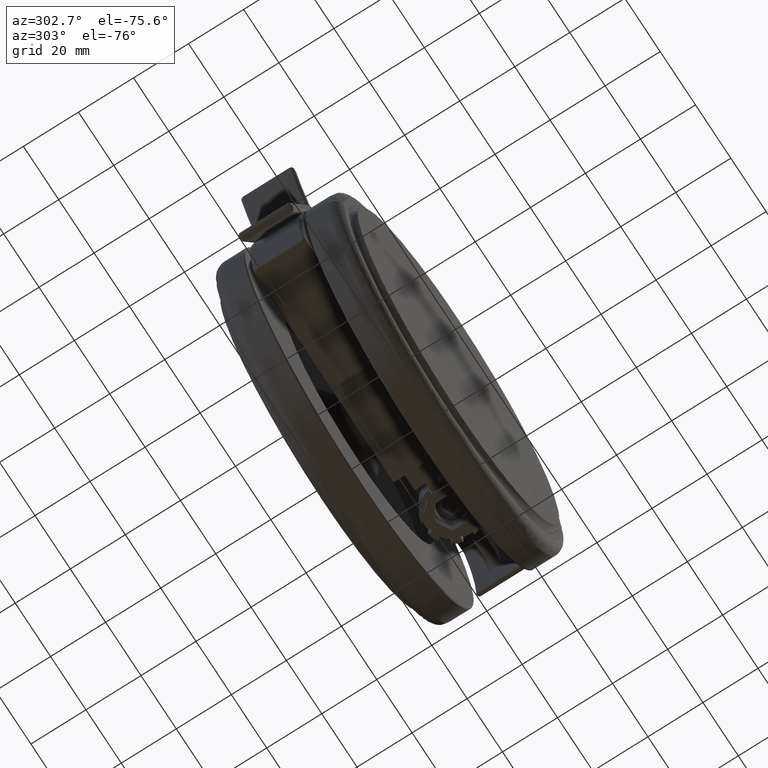
[diagram: clean part render]
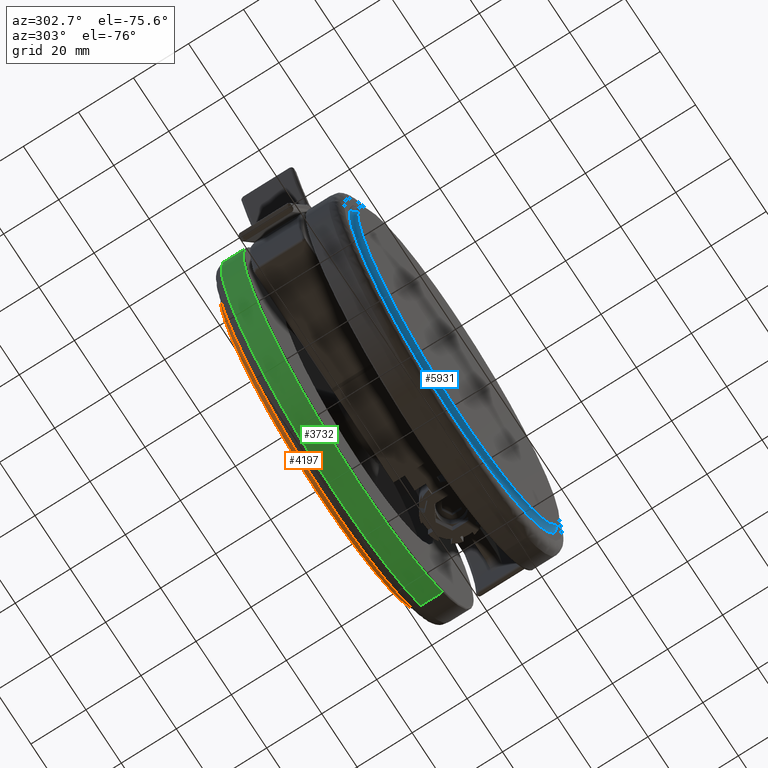
[diagram: same view with three faces highlighted in distinct colors, each labeled with its STEP entity id]
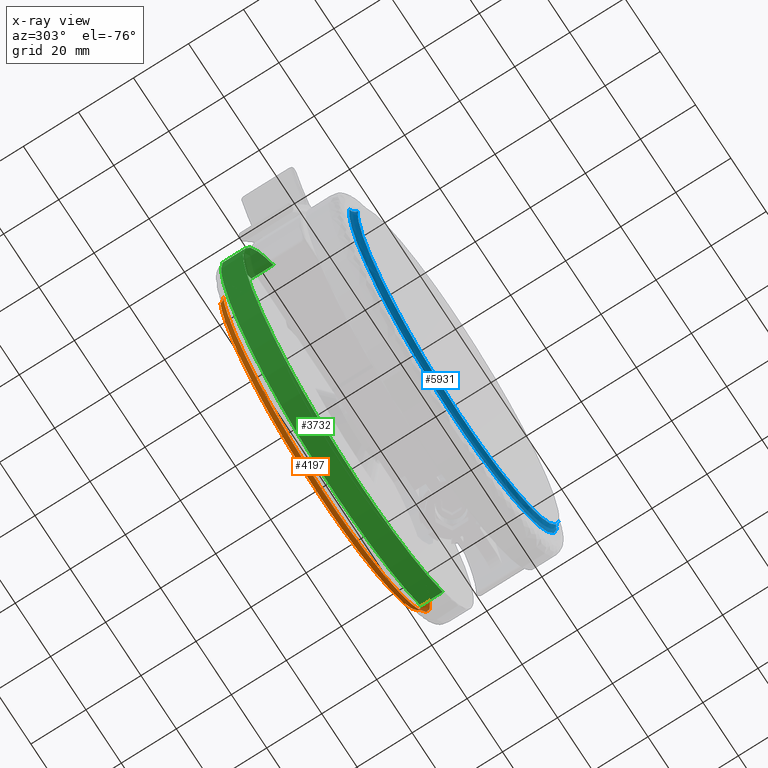
[diagram: x-ray of the same camera — body ghosted, the three highlighted faces saturated]
A machine part, auxiliary view with three faces highlighted in distinct colors.
The next image is the same camera in x-ray (body ghosted, the three faces saturated) — at least one of them is partly hidden behind the body in this view.
Their STEP definitions:

[orange] entity #4197 — the highlighted face is a freeform B-spline surface patch.
#3809=CARTESIAN_POINT('',(21.838057314905349,24.999999999354170,-67.206372084848383));
#3810=VERTEX_POINT('',#3809);
#3824=CARTESIAN_POINT('',(-35.0,25.0,-128.500000000000000));
#3825=VERTEX_POINT('',#3824);
#3826=CARTESIAN_POINT('',(21.838057314905345,24.999999999354163,-67.206372084848383));
#3827=CARTESIAN_POINT('',(22.000000000053586,24.999999999365457,-69.350132047782736));
#3828=CARTESIAN_POINT('',(22.000000000052552,24.999999999377639,-71.499999999996021));
#3829=CARTESIAN_POINT('',(22.000000000025281,24.999999999700560,-128.499999999998100));
#3830=CARTESIAN_POINT('',(-35.0,25.0,-128.500000000000000));
#3838=(BOUNDED_CURVE()B_SPLINE_CURVE(2,(#3826,#3827,#3828,#3829,#3830),.UNSPECIFIED.,.F.,.U.)B_SPLINE_CURVE_WITH_KNOTS((3,2,3),(0.236870159262180,0.250000000000000,0.500000000000000),.UNSPECIFIED.)CURVE()GEOMETRIC_REPRESENTATION_ITEM()RATIONAL_B_SPLINE_CURVE((0.970850634526866,0.984617434735168,1.0,0.707106781186547,1.0))REPRESENTATION_ITEM(''));
#3839=EDGE_CURVE('',#3810,#3825,#3838,.T.);
#3841=CARTESIAN_POINT('',(-91.838057314905356,24.999999999354170,-75.793627915151632));
#3842=VERTEX_POINT('',#3841);
#3843=CARTESIAN_POINT('',(-35.0,25.0,-128.500000000000000));
#3844=CARTESIAN_POINT('',(-87.856542794842838,24.999999999677083,-128.500000000002050));
#3845=CARTESIAN_POINT('',(-91.838057314905356,24.999999999354170,-75.793627915151632));
#3853=(BOUNDED_CURVE()B_SPLINE_CURVE(2,(#3843,#3844,#3845),.UNSPECIFIED.,.F.,.U.)B_SPLINE_CURVE_WITH_KNOTS((3,3),(0.500000000000000,0.736870159262180),.UNSPECIFIED.)CURVE()GEOMETRIC_REPRESENTATION_ITEM()RATIONAL_B_SPLINE_CURVE((1.0,0.722489346451380,0.970850634526866))REPRESENTATION_ITEM(''));
#3854=EDGE_CURVE('',#3825,#3842,#3853,.T.);
#4045=CARTESIAN_POINT('',(23.649942014690438,23.018071807542540,-67.069519604198632));
#4046=VERTEX_POINT('',#4045);
#4060=CARTESIAN_POINT('',(23.649942014690435,23.018071807542537,-67.069519604198632));
#4061=CARTESIAN_POINT('',(21.981136974348622,23.307645337844242,-67.195573580196296));
#4062=CARTESIAN_POINT('',(21.838057314905342,24.999999999354170,-67.206372084848397));
#4070=(BOUNDED_CURVE()B_SPLINE_CURVE(2,(#4060,#4061,#4062),.UNSPECIFIED.,.F.,.U.)B_SPLINE_CURVE_WITH_KNOTS((3,3),(-1.689810131809040,-0.311560344111282),.UNSPECIFIED.)CURVE()GEOMETRIC_REPRESENTATION_ITEM()RATIONAL_B_SPLINE_CURVE((0.896853461037267,0.709765153952131,0.896481764525414))REPRESENTATION_ITEM(''));
#4071=EDGE_CURVE('',#4046,#3810,#4070,.T.);
#4075=CARTESIAN_POINT('',(-93.649942014690438,23.018071807542668,-75.930480395801368));
#4076=VERTEX_POINT('',#4075);
#4077=CARTESIAN_POINT('',(-93.649942014690438,23.018071807542668,-75.930480395801368));
#4078=CARTESIAN_POINT('',(-91.981136974348814,23.307645337844374,-75.804426419803733));
#4079=CARTESIAN_POINT('',(-91.838057314905356,24.999999999354170,-75.793627915151632));
#4087=(BOUNDED_CURVE()B_SPLINE_CURVE(2,(#4077,#4078,#4079),.UNSPECIFIED.,.F.,.U.)B_SPLINE_CURVE_WITH_KNOTS((3,3),(-1.689810131809055,-0.311560344111394),.UNSPECIFIED.)CURVE()GEOMETRIC_REPRESENTATION_ITEM()RATIONAL_B_SPLINE_CURVE((0.896853461037271,0.709765153952145,0.896481764525384))REPRESENTATION_ITEM(''));
#4088=EDGE_CURVE('',#4076,#3842,#4087,.T.);
#4123=CARTESIAN_POINT('',(-93.781082777842173,22.999385752556481,-75.940406829814762));
#4124=CARTESIAN_POINT('',(-89.340675948027382,22.999385752556474,-134.721489607656960));
#4125=CARTESIAN_POINT('',(-30.559593170185238,22.999385752556361,-130.281082777842190));
#4126=CARTESIAN_POINT('',(28.221489607656917,22.999385752556240,-125.840675948027410));
#4127=CARTESIAN_POINT('',(23.781082777842176,22.999385752556254,-67.059593170185224));
#4128=CARTESIAN_POINT('',(-91.877151664042174,23.212088152841481,-75.796581157988257));
#4129=CARTESIAN_POINT('',(-87.580570506053931,23.212088152841481,-132.673732822030420));
#4130=CARTESIAN_POINT('',(-30.703418842011768,23.212088152841378,-128.377151664042170));
#4131=CARTESIAN_POINT('',(26.173732822030402,23.212088152841254,-124.080570506053970));
#4132=CARTESIAN_POINT('',(21.877151664042174,23.212088152841265,-67.203418842011772));
#4133=CARTESIAN_POINT('',(-91.830855360416820,25.132693849568621,-75.793083869182070));
#4134=CARTESIAN_POINT('',(-87.537771491234750,25.132693849568614,-132.623939229598900));
#4135=CARTESIAN_POINT('',(-30.706916130817941,25.132693849568501,-128.330855360416820));
#4136=CARTESIAN_POINT('',(26.123939229598868,25.132693849568401,-124.037771491234760));
#4137=CARTESIAN_POINT('',(21.830855360416816,25.132693849568405,-67.206916130817945));
#4145=(BOUNDED_SURFACE()B_SPLINE_SURFACE(2,2,((#4123,#4128,#4133),(#4124,#4129,#4134),(#4125,#4130,#4135),(#4126,#4131,#4136),(#4127,#4132,#4137)),.UNSPECIFIED.,.F.,.F.,.U.)B_SPLINE_SURFACE_WITH_KNOTS((3,2,3),(3,3),(0.0,97.669174656894910,195.338349313789790),(0.0,3.301510569757944),.UNSPECIFIED.)GEOMETRIC_REPRESENTATION_ITEM()RATIONAL_B_SPLINE_SURFACE(((0.916476833075790,0.690160635493702,0.916067430440628),(0.648046983468263,0.488017265465614,0.647757492088704),(0.916476833075790,0.690160635493702,0.916067430440628),(0.648046983468263,0.488017265465614,0.647757492088704),(0.916476833075790,0.690160635493702,0.916067430440628)))REPRESENTATION_ITEM('')SURFACE());
#4146=CARTESIAN_POINT('',(6.850429039199890,23.018071161628601,-112.827797947949410));
#4147=VERTEX_POINT('',#4146);
#4148=CARTESIAN_POINT('',(23.649942014690442,23.018071807542537,-67.069519604198632));
#4149=CARTESIAN_POINT('',(23.817045779675638,23.018071780789203,-69.281608623239677));
#4150=CARTESIAN_POINT('',(23.817045938704091,23.018071753194342,-71.500000257540137));
#4151=CARTESIAN_POINT('',(23.817047669687579,23.018071452831361,-95.646617984801409));
#4152=CARTESIAN_POINT('',(6.850429039199890,23.018071161628605,-112.827797947949390));
#4160=(BOUNDED_CURVE()B_SPLINE_CURVE(2,(#4148,#4149,#4150,#4151,#4152),.UNSPECIFIED.,.F.,.U.)B_SPLINE_CURVE_WITH_KNOTS((3,2,3),(0.236870217087625,0.250000000000000,0.374051937432029),.UNSPECIFIED.)CURVE()GEOMETRIC_REPRESENTATION_ITEM()RATIONAL_B_SPLINE_CURVE((0.970850755788285,0.984617502481891,1.0,0.854664114981952,0.853561814883004))REPRESENTATION_ITEM(''));
#4161=EDGE_CURVE('',#4046,#4147,#4160,.T.);
#4162=ORIENTED_EDGE('',*,*,#4161,.T.);
#4163=CARTESIAN_POINT('',(-35.0,23.018071161631202,-130.317049347871010));
#4164=VERTEX_POINT('',#4163);
#4165=CARTESIAN_POINT('',(6.850429039199890,23.018071161628605,-112.827797947949390));
#4166=CARTESIAN_POINT('',(-10.420415363386454,23.018071161629898,-130.317049347876240));
#4167=CARTESIAN_POINT('',(-35.0,23.018071161631202,-130.317049347871010));
#4175=(BOUNDED_CURVE()B_SPLINE_CURVE(2,(#4165,#4166,#4167),.UNSPECIFIED.,.F.,.U.)B_SPLINE_CURVE_WITH_KNOTS((3,3),(0.374051937432029,0.500000000000000),.UNSPECIFIED.)CURVE()GEOMETRIC_REPRESENTATION_ITEM()RATIONAL_B_SPLINE_CURVE((0.853561814883004,0.852442666204595,1.0))REPRESENTATION_ITEM(''));
#4176=EDGE_CURVE('',#4147,#4164,#4175,.T.);
#4177=ORIENTED_EDGE('',*,*,#4176,.T.);
#4178=CARTESIAN_POINT('',(-35.0,23.018071161631202,-130.317049347871010));
#4179=CARTESIAN_POINT('',(-89.541523338456713,23.018071484587285,-130.317049207272590));
#4180=CARTESIAN_POINT('',(-93.649942014690438,23.018071807542668,-75.930480395801368));
#4188=(BOUNDED_CURVE()B_SPLINE_CURVE(2,(#4178,#4179,#4180),.UNSPECIFIED.,.F.,.U.)B_SPLINE_CURVE_WITH_KNOTS((3,3),(0.500000000000000,0.736870217087625),.UNSPECIFIED.)CURVE()GEOMETRIC_REPRESENTATION_ITEM()RATIONAL_B_SPLINE_CURVE((1.0,0.722489278704657,0.970850755788284))REPRESENTATION_ITEM(''));
#4189=EDGE_CURVE('',#4164,#4076,#4188,.T.);
#4190=ORIENTED_EDGE('',*,*,#4189,.T.);
#4191=ORIENTED_EDGE('',*,*,#4088,.T.);
#4192=ORIENTED_EDGE('',*,*,#3854,.F.);
#4193=ORIENTED_EDGE('',*,*,#3839,.F.);
#4194=ORIENTED_EDGE('',*,*,#4071,.F.);
#4195=EDGE_LOOP('',(#4162,#4177,#4190,#4191,#4192,#4193,#4194));
#4196=FACE_OUTER_BOUND('',#4195,.T.);
#4197=ADVANCED_FACE('',(#4196),#4145,.F.);

[blue] entity #5931 — the highlighted face is a freeform B-spline surface patch.
#5537=CARTESIAN_POINT('',(-91.838057314910145,-24.999999999281521,-67.206372084830178));
#5538=VERTEX_POINT('',#5537);
#5554=CARTESIAN_POINT('',(-35.0,-25.0,-128.500000000000000));
#5555=VERTEX_POINT('',#5554);
#5556=CARTESIAN_POINT('',(-35.0,-25.0,-128.500000000000000));
#5557=CARTESIAN_POINT('',(-92.000000000028137,-24.999999999666873,-128.499999999997900));
#5558=CARTESIAN_POINT('',(-92.000000000058463,-24.999999999307640,-71.499999999995623));
#5559=CARTESIAN_POINT('',(-92.000000000059615,-24.999999999294094,-69.350132047773400));
#5560=CARTESIAN_POINT('',(-91.838057314910145,-24.999999999281521,-67.206372084830193));
#5568=(BOUNDED_CURVE()B_SPLINE_CURVE(2,(#5556,#5557,#5558,#5559,#5560),.UNSPECIFIED.,.F.,.U.)B_SPLINE_CURVE_WITH_KNOTS((3,2,3),(0.500000000000000,0.750000000000000,0.763129840737874),.UNSPECIFIED.)CURVE()GEOMETRIC_REPRESENTATION_ITEM()RATIONAL_B_SPLINE_CURVE((1.0,0.707106781186547,1.0,0.984617434735105,0.970850634526754))REPRESENTATION_ITEM(''));
#5569=EDGE_CURVE('',#5555,#5538,#5568,.T.);
#5571=CARTESIAN_POINT('',(21.838057314910149,-24.999999999281521,-75.793627915169822));
#5572=VERTEX_POINT('',#5571);
#5573=CARTESIAN_POINT('',(21.838057314910149,-24.999999999281521,-75.793627915169822));
#5574=CARTESIAN_POINT('',(17.856542794829359,-24.999999999640764,-128.500000000002300));
#5575=CARTESIAN_POINT('',(-35.0,-25.0,-128.500000000000000));
#5583=(BOUNDED_CURVE()B_SPLINE_CURVE(2,(#5573,#5574,#5575),.UNSPECIFIED.,.F.,.U.)B_SPLINE_CURVE_WITH_KNOTS((3,3),(0.263129840737873,0.500000000000000),.UNSPECIFIED.)CURVE()GEOMETRIC_REPRESENTATION_ITEM()RATIONAL_B_SPLINE_CURVE((0.970850634526754,0.722489346451443,1.0))REPRESENTATION_ITEM(''));
#5584=EDGE_CURVE('',#5572,#5555,#5583,.T.);
#5777=CARTESIAN_POINT('',(-93.649944238433278,-23.018071162644411,-67.069499562182926));
#5778=VERTEX_POINT('',#5777);
#5794=CARTESIAN_POINT('',(-93.649944238433264,-23.018071162644414,-67.069499562182912));
#5795=CARTESIAN_POINT('',(-91.981136482288179,-23.307642330176431,-67.195563680342815));
#5796=CARTESIAN_POINT('',(-91.838057314910145,-24.999999999281524,-67.206372084830178));
#5804=(BOUNDED_CURVE()B_SPLINE_CURVE(2,(#5794,#5795,#5796),.UNSPECIFIED.,.F.,.U.)B_SPLINE_CURVE_WITH_KNOTS((3,3),(-1.689812071077324,-0.311560344148673),.UNSPECIFIED.)CURVE()GEOMETRIC_REPRESENTATION_ITEM()RATIONAL_B_SPLINE_CURVE((0.896853987523733,0.709764891237340,0.896481764515283))REPRESENTATION_ITEM(''));
#5805=EDGE_CURVE('',#5778,#5538,#5804,.T.);
#5809=CARTESIAN_POINT('',(23.649944238433260,-23.018071162644400,-75.930500437817088));
#5810=VERTEX_POINT('',#5809);
#5811=CARTESIAN_POINT('',(23.649944238433264,-23.018071162644400,-75.930500437817088));
#5812=CARTESIAN_POINT('',(21.981136482288175,-23.307642330176439,-75.804436319657199));
#5813=CARTESIAN_POINT('',(21.838057314910152,-24.999999999281521,-75.793627915169822));
#5821=(BOUNDED_CURVE()B_SPLINE_CURVE(2,(#5811,#5812,#5813),.UNSPECIFIED.,.F.,.U.)B_SPLINE_CURVE_WITH_KNOTS((3,3),(-1.689812071077317,-0.311560344148675),.UNSPECIFIED.)CURVE()GEOMETRIC_REPRESENTATION_ITEM()RATIONAL_B_SPLINE_CURVE((0.896853987523731,0.709764891237341,0.896481764515283))REPRESENTATION_ITEM(''));
#5822=EDGE_CURVE('',#5810,#5572,#5821,.T.);
#5857=CARTESIAN_POINT('',(23.781082777842165,-22.999385752556318,-75.940406829814762));
#5858=CARTESIAN_POINT('',(19.340675948027393,-22.999385752556318,-134.721489607656960));
#5859=CARTESIAN_POINT('',(-39.440406829814762,-22.999385752556318,-130.281082777842190));
#5860=CARTESIAN_POINT('',(-98.221489607656935,-22.999385752556318,-125.840675948027410));
#5861=CARTESIAN_POINT('',(-93.781082777842187,-22.999385752556318,-67.059593170185224));
#5862=CARTESIAN_POINT('',(21.877151664042174,-23.212088152841336,-75.796581157988257));
#5863=CARTESIAN_POINT('',(17.580570506053942,-23.212088152841339,-132.673732822030420));
#5864=CARTESIAN_POINT('',(-39.296581157988221,-23.212088152841336,-128.377151664042170));
#5865=CARTESIAN_POINT('',(-96.173732822030402,-23.212088152841339,-124.080570506053970));
#5866=CARTESIAN_POINT('',(-91.877151664042174,-23.212088152841336,-67.203418842011772));
#5867=CARTESIAN_POINT('',(21.830855360416816,-25.132693849568472,-75.793083869182070));
#5868=CARTESIAN_POINT('',(17.537771491234750,-25.132693849568462,-132.623939229598900));
#5869=CARTESIAN_POINT('',(-39.293083869182063,-25.132693849568472,-128.330855360416820));
#5870=CARTESIAN_POINT('',(-96.123939229598875,-25.132693849568462,-124.037771491234760));
#5871=CARTESIAN_POINT('',(-91.830855360416820,-25.132693849568472,-67.206916130817945));
#5879=(BOUNDED_SURFACE()B_SPLINE_SURFACE(2,2,((#5857,#5862,#5867),(#5858,#5863,#5868),(#5859,#5864,#5869),(#5860,#5865,#5870),(#5861,#5866,#5871)),.UNSPECIFIED.,.F.,.F.,.U.)B_SPLINE_SURFACE_WITH_KNOTS((3,2,3),(3,3),(0.0,97.669174656894910,195.338349313789790),(0.0,3.301510569757935),.UNSPECIFIED.)GEOMETRIC_REPRESENTATION_ITEM()RATIONAL_B_SPLINE_SURFACE(((0.916476833075790,0.690160635493702,0.916067430440628),(0.648046983468263,0.488017265465614,0.647757492088704),(0.916476833075790,0.690160635493702,0.916067430440628),(0.648046983468263,0.488017265465614,0.647757492088704),(0.916476833075790,0.690160635493702,0.916067430440628)))REPRESENTATION_ITEM('')SURFACE());
#5880=CARTESIAN_POINT('',(-76.850429039199895,-23.018071161628558,-112.827797947949410));
#5881=VERTEX_POINT('',#5880);
#5882=CARTESIAN_POINT('',(-76.850429039199895,-23.018071161628566,-112.827797947949410));
#5883=CARTESIAN_POINT('',(-93.817049345244371,-23.018071162086382,-95.646617858228041));
#5884=CARTESIAN_POINT('',(-93.817049342522964,-23.018071162558911,-71.500000000411958));
#5885=CARTESIAN_POINT('',(-93.817049342272938,-23.018071162602325,-69.281598431237256));
#5886=CARTESIAN_POINT('',(-93.649944238433278,-23.018071162644411,-67.069499562182926));
#5894=(BOUNDED_CURVE()B_SPLINE_CURVE(2,(#5882,#5883,#5884,#5885,#5886),.UNSPECIFIED.,.F.,.U.)B_SPLINE_CURVE_WITH_KNOTS((3,2,3),(0.625948062567971,0.750000000000000,0.763129840738566),.UNSPECIFIED.)CURVE()GEOMETRIC_REPRESENTATION_ITEM()RATIONAL_B_SPLINE_CURVE((0.853561814883004,0.854664114981952,1.0,0.984617434734294,0.970850634525303))REPRESENTATION_ITEM(''));
#5895=EDGE_CURVE('',#5881,#5778,#5894,.T.);
#5896=ORIENTED_EDGE('',*,*,#5895,.F.);
#5897=CARTESIAN_POINT('',(-35.0,-23.018071161631099,-130.317049347871010));
#5898=VERTEX_POINT('',#5897);
#5899=CARTESIAN_POINT('',(-35.0,-23.018071161631099,-130.317049347871010));
#5900=CARTESIAN_POINT('',(-59.579584636613568,-23.018071161629830,-130.317049347876240));
#5901=CARTESIAN_POINT('',(-76.850429039199895,-23.018071161628555,-112.827797947949410));
#5909=(BOUNDED_CURVE()B_SPLINE_CURVE(2,(#5899,#5900,#5901),.UNSPECIFIED.,.F.,.U.)B_SPLINE_CURVE_WITH_KNOTS((3,3),(0.500000000000000,0.625948062567971),.UNSPECIFIED.)CURVE()GEOMETRIC_REPRESENTATION_ITEM()RATIONAL_B_SPLINE_CURVE((1.0,0.852442666204595,0.853561814883004))REPRESENTATION_ITEM(''));
#5910=EDGE_CURVE('',#5898,#5881,#5909,.T.);
#5911=ORIENTED_EDGE('',*,*,#5910,.F.);
#5912=CARTESIAN_POINT('',(23.649944238433257,-23.018071162644397,-75.930500437817088));
#5913=CARTESIAN_POINT('',(19.541506767376088,-23.018071162138099,-130.317049347648090));
#5914=CARTESIAN_POINT('',(-35.0,-23.018071161631099,-130.317049347871010));
#5922=(BOUNDED_CURVE()B_SPLINE_CURVE(2,(#5912,#5913,#5914),.UNSPECIFIED.,.F.,.U.)B_SPLINE_CURVE_WITH_KNOTS((3,3),(0.263129840738566,0.500000000000000),.UNSPECIFIED.)CURVE()GEOMETRIC_REPRESENTATION_ITEM()RATIONAL_B_SPLINE_CURVE((0.970850634525303,0.722489346452253,1.0))REPRESENTATION_ITEM(''));
#5923=EDGE_CURVE('',#5810,#5898,#5922,.T.);
#5924=ORIENTED_EDGE('',*,*,#5923,.F.);
#5925=ORIENTED_EDGE('',*,*,#5822,.T.);
#5926=ORIENTED_EDGE('',*,*,#5584,.T.);
#5927=ORIENTED_EDGE('',*,*,#5569,.T.);
#5928=ORIENTED_EDGE('',*,*,#5805,.F.);
#5929=EDGE_LOOP('',(#5896,#5911,#5924,#5925,#5926,#5927,#5928));
#5930=FACE_OUTER_BOUND('',#5929,.T.);
#5931=ADVANCED_FACE('',(#5930),#5879,.F.);

[green] entity #3732 — the highlighted face is a freeform B-spline surface patch.
#3497=CARTESIAN_POINT('',(-35.0,11.500000000000000,-136.500000000000000));
#3498=VERTEX_POINT('',#3497);
#3499=CARTESIAN_POINT('',(-99.994867873247983,11.499999996459801,-70.683207407578010));
#3500=VERTEX_POINT('',#3499);
#3501=CARTESIAN_POINT('',(-35.0,11.500000000000000,-136.500000000000000));
#3502=CARTESIAN_POINT('',(-99.999999999999986,11.499999998252006,-136.500000000000030));
#3503=CARTESIAN_POINT('',(-100.0,11.499999996481900,-71.500000000000028));
#3504=CARTESIAN_POINT('',(-99.999999999999986,11.499999996470780,-71.091587580525143));
#3505=CARTESIAN_POINT('',(-99.994867873247983,11.499999996459804,-70.683207407578010));
#3513=(BOUNDED_CURVE()B_SPLINE_CURVE(2,(#3501,#3502,#3503,#3504,#3505),.UNSPECIFIED.,.F.,.U.)B_SPLINE_CURVE_WITH_KNOTS((3,2,3),(0.500000000000000,0.750000000000000,0.752215704078283),.UNSPECIFIED.)CURVE()GEOMETRIC_REPRESENTATION_ITEM()RATIONAL_B_SPLINE_CURVE((1.0,0.707106781186547,1.0,0.997404141202295,0.994854295643987))REPRESENTATION_ITEM(''));
#3514=EDGE_CURVE('',#3498,#3500,#3513,.T.);
#3516=CARTESIAN_POINT('',(12.923029255877729,11.499999998104199,-115.413360916015900));
#3517=VERTEX_POINT('',#3516);
#3518=CARTESIAN_POINT('',(12.923029255877802,11.499999998104204,-115.413360916016020));
#3519=CARTESIAN_POINT('',(-6.399313404403548,11.499999999211287,-136.500000000000030));
#3520=CARTESIAN_POINT('',(-35.0,11.500000000000000,-136.500000000000000));
#3528=(BOUNDED_CURVE()B_SPLINE_CURVE(2,(#3518,#3519,#3520),.UNSPECIFIED.,.F.,.U.)B_SPLINE_CURVE_WITH_KNOTS((3,3),(0.368415200960073,0.500000000000000),.UNSPECIFIED.)CURVE()GEOMETRIC_REPRESENTATION_ITEM()RATIONAL_B_SPLINE_CURVE((0.853959781840725,0.845838818649098,1.0))REPRESENTATION_ITEM(''));
#3529=EDGE_CURVE('',#3517,#3498,#3528,.T.);
#3600=CARTESIAN_POINT('',(-82.923029255877765,11.499999998104199,-27.586639083984100));
#3601=VERTEX_POINT('',#3600);
#3617=CARTESIAN_POINT('',(-99.994867873247983,11.499999996459804,-70.683207407578010));
#3618=CARTESIAN_POINT('',(-99.683128470899163,11.499999997143926,-45.877079812239579));
#3619=CARTESIAN_POINT('',(-82.923029255877822,11.499999998104204,-27.586639083984053));
#3627=(BOUNDED_CURVE()B_SPLINE_CURVE(2,(#3617,#3618,#3619),.UNSPECIFIED.,.F.,.U.)B_SPLINE_CURVE_WITH_KNOTS((3,3),(0.752215704078283,0.868415200960073),.UNSPECIFIED.)CURVE()GEOMETRIC_REPRESENTATION_ITEM()RATIONAL_B_SPLINE_CURVE((0.994854295643987,0.861131216869298,0.853959781840725))REPRESENTATION_ITEM(''));
#3628=EDGE_CURVE('',#3500,#3601,#3627,.T.);
#3652=CARTESIAN_POINT('',(-82.923026892658044,19.700000001306741,-27.586636504982089));
#3653=CARTESIAN_POINT('',(-126.836390387675950,19.700000001306822,-75.509663397640139));
#3654=CARTESIAN_POINT('',(-78.913363495017904,19.700000001306741,-119.423026892658000));
#3655=CARTESIAN_POINT('',(-30.990336602359857,19.700000001306652,-163.336390387675950));
#3656=CARTESIAN_POINT('',(12.923026892658051,19.700000001306570,-115.413363495017900));
#3657=CARTESIAN_POINT('',(-82.923026892658072,11.294999996338600,-27.586636504982089));
#3658=CARTESIAN_POINT('',(-126.836390387675990,11.294999996338674,-75.509663397640139));
#3659=CARTESIAN_POINT('',(-78.913363495017933,11.294999996338589,-119.423026892658000));
#3660=CARTESIAN_POINT('',(-30.990336602359875,11.294999996338502,-163.336390387675950));
#3661=CARTESIAN_POINT('',(12.923026892658040,11.294999996338420,-115.413363495017900));
#3669=(BOUNDED_SURFACE()B_SPLINE_SURFACE(2,1,((#3652,#3657),(#3653,#3658),(#3654,#3659),(#3655,#3660),(#3656,#3661)),.UNSPECIFIED.,.F.,.F.,.U.)B_SPLINE_SURFACE_WITH_KNOTS((3,2,3),(2,2),(0.0,107.695526217004700,215.391052434009400),(0.0,8.405000004968152),.UNSPECIFIED.)GEOMETRIC_REPRESENTATION_ITEM()RATIONAL_B_SPLINE_SURFACE(((1.0,1.0),(0.707106781186548,0.707106781186548),(1.0,1.0),(0.707106781186548,0.707106781186548),(1.0,1.0)))REPRESENTATION_ITEM('')SURFACE());
#3670=CARTESIAN_POINT('',(-99.999999999999986,19.500000001188329,-71.500000000000028));
#3671=VERTEX_POINT('',#3670);
#3672=CARTESIAN_POINT('',(-82.923029881567629,19.500000000630859,-27.586639766804971));
#3673=VERTEX_POINT('',#3672);
#3674=CARTESIAN_POINT('',(-100.0,19.500000001188329,-71.500000000000057));
#3675=CARTESIAN_POINT('',(-100.0,19.500000000957268,-46.222884976153154));
#3676=CARTESIAN_POINT('',(-82.923029881567743,19.500000000630809,-27.586639766804844));
#3684=(BOUNDED_CURVE()B_SPLINE_CURVE(2,(#3674,#3675,#3676),.UNSPECIFIED.,.F.,.U.)B_SPLINE_CURVE_WITH_KNOTS((3,3),(0.750000000000000,0.868415198809150),.UNSPECIFIED.)CURVE()GEOMETRIC_REPRESENTATION_ITEM()RATIONAL_B_SPLINE_CURVE((1.0,0.861267965057413,0.853959782106221))REPRESENTATION_ITEM(''));
#3685=EDGE_CURVE('',#3671,#3673,#3684,.T.);
#3686=ORIENTED_EDGE('',*,*,#3685,.F.);
#3687=CARTESIAN_POINT('',(-35.0,19.500000000000000,-136.500000000000000));
#3688=VERTEX_POINT('',#3687);
#3689=CARTESIAN_POINT('',(-35.0,19.500000000000000,-136.500000000000000));
#3690=CARTESIAN_POINT('',(-99.999999999999957,19.500000000594170,-136.500000000000000));
#3691=CARTESIAN_POINT('',(-99.999999999999986,19.500000001188322,-71.500000000000028));
#3699=(BOUNDED_CURVE()B_SPLINE_CURVE(2,(#3689,#3690,#3691),.UNSPECIFIED.,.F.,.U.)B_SPLINE_CURVE_WITH_KNOTS((3,3),(0.500000000000000,0.750000000000000),.UNSPECIFIED.)CURVE()GEOMETRIC_REPRESENTATION_ITEM()RATIONAL_B_SPLINE_CURVE((1.0,0.707106781186548,1.000000000000000))REPRESENTATION_ITEM(''));
#3700=EDGE_CURVE('',#3688,#3671,#3699,.T.);
#3701=ORIENTED_EDGE('',*,*,#3700,.F.);
#3702=CARTESIAN_POINT('',(12.923029881567640,19.500000000630870,-115.413360233194990));
#3703=VERTEX_POINT('',#3702);
#3704=CARTESIAN_POINT('',(12.923029881567759,19.500000000630813,-115.413360233195120));
#3705=CARTESIAN_POINT('',(-6.399312851679867,19.500000000261434,-136.499999999999970));
#3706=CARTESIAN_POINT('',(-35.0,19.500000000000000,-136.500000000000000));
#3714=(BOUNDED_CURVE()B_SPLINE_CURVE(2,(#3704,#3705,#3706),.UNSPECIFIED.,.F.,.U.)B_SPLINE_CURVE_WITH_KNOTS((3,3),(0.368415198809150,0.500000000000000),.UNSPECIFIED.)CURVE()GEOMETRIC_REPRESENTATION_ITEM()RATIONAL_B_SPLINE_CURVE((0.853959782106221,0.845838816129134,1.0))REPRESENTATION_ITEM(''));
#3715=EDGE_CURVE('',#3703,#3688,#3714,.T.);
#3716=ORIENTED_EDGE('',*,*,#3715,.F.);
#3717=CARTESIAN_POINT('',(12.923029881567640,19.500000000630870,-115.413360233194990));
#3718=CARTESIAN_POINT('',(12.923029255877729,11.499999998104199,-115.413360916015900));
#3719=QUASI_UNIFORM_CURVE('',1,(#3717,#3718),.UNSPECIFIED.,.F.,.U.);
#3720=EDGE_CURVE('',#3703,#3517,#3719,.T.);
#3721=ORIENTED_EDGE('',*,*,#3720,.T.);
#3722=ORIENTED_EDGE('',*,*,#3529,.T.);
#3723=ORIENTED_EDGE('',*,*,#3514,.T.);
#3724=ORIENTED_EDGE('',*,*,#3628,.T.);
#3725=CARTESIAN_POINT('',(-82.923029881567629,19.500000000630859,-27.586639766804971));
#3726=CARTESIAN_POINT('',(-82.923029255877765,11.499999998104199,-27.586639083984100));
#3727=QUASI_UNIFORM_CURVE('',1,(#3725,#3726),.UNSPECIFIED.,.F.,.U.);
#3728=EDGE_CURVE('',#3673,#3601,#3727,.T.);
#3729=ORIENTED_EDGE('',*,*,#3728,.F.);
#3730=EDGE_LOOP('',(#3686,#3701,#3716,#3721,#3722,#3723,#3724,#3729));
#3731=FACE_OUTER_BOUND('',#3730,.T.);
#3732=ADVANCED_FACE('',(#3731),#3669,.T.);